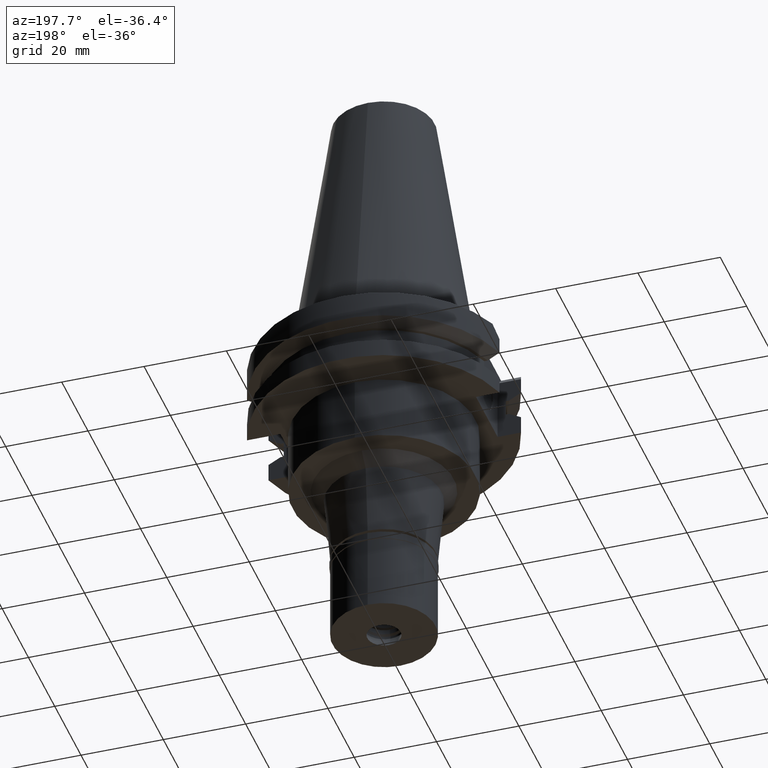
[diagram: clean part render]
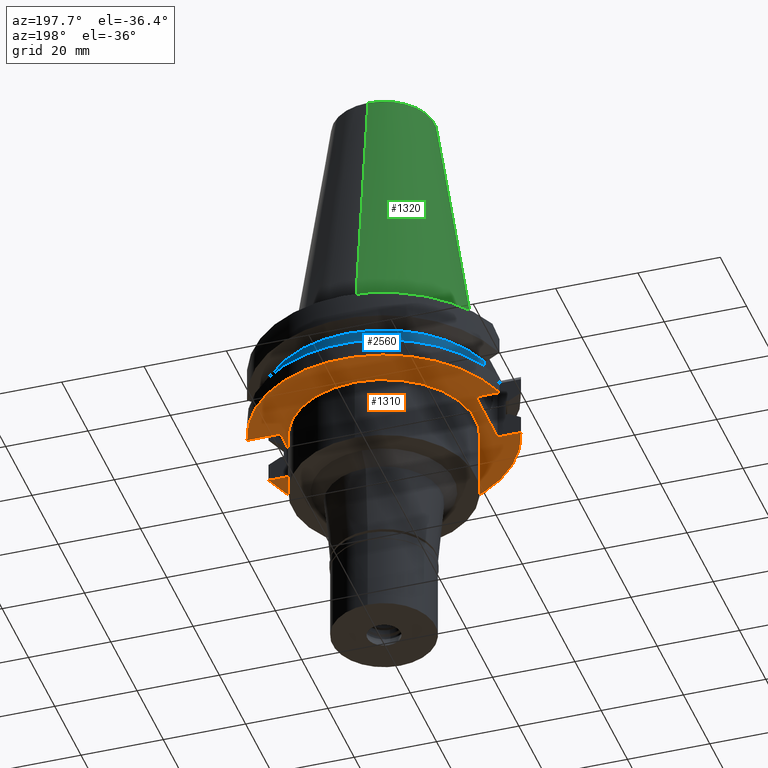
[diagram: same view with three faces highlighted in distinct colors, each labeled with its STEP entity id]
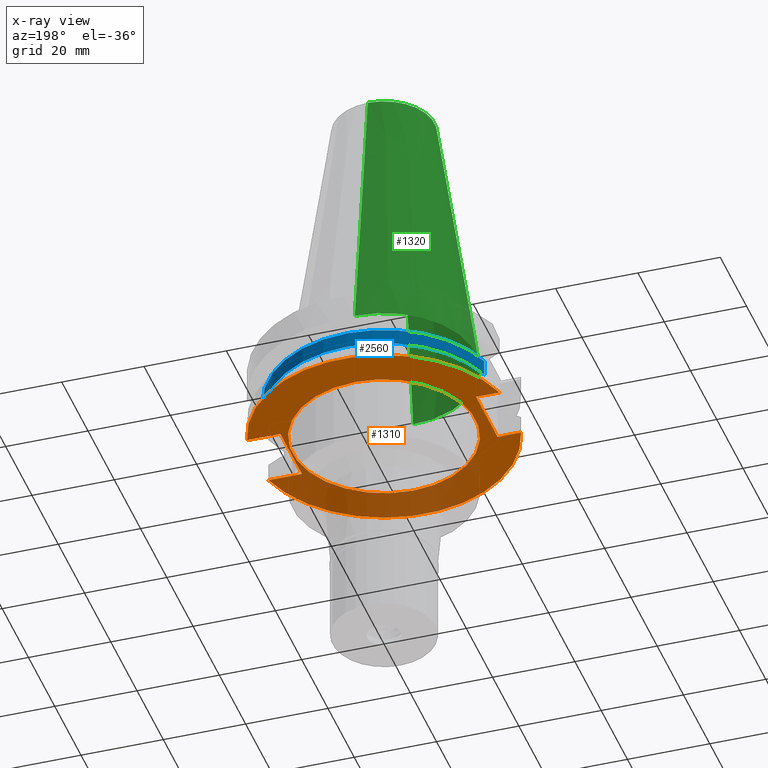
[diagram: x-ray of the same camera — body ghosted, the three highlighted faces saturated]
A machine part, auxiliary view with three faces highlighted in distinct colors.
The next image is the same camera in x-ray (body ghosted, the three faces saturated) — at least one of them is partly hidden behind the body in this view.
Their STEP definitions:

[orange] entity #1310 — the highlighted planar face has unit normal (0, 0, -1).
#21 = CARTESIAN_POINT ( 'NONE',  ( 0.0000000000000000000, 2.145121949555999817E-14, -19.05000000000000071 ) ) ;
#49 = DIRECTION ( 'NONE',  ( 0.0000000000000000000, 0.0000000000000000000, -1.000000000000000000 ) ) ;
#139 = DIRECTION ( 'NONE',  ( 0.0000000000000000000, 1.000000000000000000, 0.0000000000000000000 ) ) ;
#204 = VERTEX_POINT ( 'NONE', #1581 ) ;
#240 = LINE ( 'NONE', #777, #2527 ) ;
#245 = EDGE_CURVE ( 'NONE', #2936, #1126, #911, .T. ) ;
#273 = CARTESIAN_POINT ( 'NONE',  ( -24.98000000000000043, 8.189999999999999503, -19.05000000000000071 ) ) ;
#290 = LINE ( 'NONE', #1854, #802 ) ;
#314 = AXIS2_PLACEMENT_3D ( 'NONE', #1952, #2725, #1414 ) ;
#497 = EDGE_CURVE ( 'NONE', #2647, #3031, #2923, .T. ) ;
#502 = ORIENTED_EDGE ( 'NONE', *, *, #2069, .F. ) ;
#587 = EDGE_CURVE ( 'NONE', #3329, #204, #290, .T. ) ;
#624 = ORIENTED_EDGE ( 'NONE', *, *, #587, .T. ) ;
#628 = ORIENTED_EDGE ( 'NONE', *, *, #1070, .F. ) ;
#644 = DIRECTION ( 'NONE',  ( 0.0000000000000000000, -1.000000000000000000, 0.0000000000000000000 ) ) ;
#741 = CARTESIAN_POINT ( 'NONE',  ( -30.67550162588999640, -8.189999999999999503, -19.05000000000000071 ) ) ;
#746 = AXIS2_PLACEMENT_3D ( 'NONE', #2097, #2625, #1792 ) ;
#771 = VERTEX_POINT ( 'NONE', #1117 ) ;
#777 = CARTESIAN_POINT ( 'NONE',  ( -24.98000000000000043, 8.189999999999999503, -19.05000000000000071 ) ) ;
#802 = VECTOR ( 'NONE', #3124, 1000.000000000000000 ) ;
#886 = CARTESIAN_POINT ( 'NONE',  ( 22.57000000000000028, 8.189999999999999503, -19.05000000000000071 ) ) ;
#911 = CIRCLE ( 'NONE', #2974, 22.22500000000000142 ) ;
#922 = VECTOR ( 'NONE', #2268, 1000.000000000000000 ) ;
#949 = EDGE_CURVE ( 'NONE', #2722, #3031, #2066, .T. ) ;
#970 = CIRCLE ( 'NONE', #746, 22.22500000000000142 ) ;
#1004 = CIRCLE ( 'NONE', #1711, 31.75000000000000000 ) ;
#1025 = ORIENTED_EDGE ( 'NONE', *, *, #245, .F. ) ;
#1070 = EDGE_CURVE ( 'NONE', #1126, #2936, #970, .T. ) ;
#1112 = CARTESIAN_POINT ( 'NONE',  ( 22.57000000000000028, 8.189999999999999503, -19.05000000000000071 ) ) ;
#1117 = CARTESIAN_POINT ( 'NONE',  ( -24.98000000000000043, -8.189999999999999503, -19.05000000000000071 ) ) ;
#1126 = VERTEX_POINT ( 'NONE', #1278 ) ;
#1136 = DIRECTION ( 'NONE',  ( 0.0000000000000000000, -1.000000000000000000, 0.0000000000000000000 ) ) ;
#1175 = ORIENTED_EDGE ( 'NONE', *, *, #3120, .F. ) ;
#1197 = DIRECTION ( 'NONE',  ( 0.0000000000000000000, 0.0000000000000000000, 1.000000000000000000 ) ) ;
#1210 = CARTESIAN_POINT ( 'NONE',  ( 30.67550162588999640, -8.189999999999999503, -19.05000000000000071 ) ) ;
#1217 = VERTEX_POINT ( 'NONE', #1112 ) ;
#1265 = DIRECTION ( 'NONE',  ( 0.0000000000000000000, 0.0000000000000000000, 1.000000000000000000 ) ) ;
#1278 = CARTESIAN_POINT ( 'NONE',  ( 0.0000000000000000000, -22.22500000000000142, -19.05000000000000071 ) ) ;
#1310 = ADVANCED_FACE ( 'NONE', ( #3239, #2983 ), #1681, .T. ) ;
#1369 = CARTESIAN_POINT ( 'NONE',  ( 0.0000000000000000000, 22.22500000000000142, -19.05000000000000071 ) ) ;
#1414 = DIRECTION ( 'NONE',  ( 0.0000000000000000000, -1.000000000000000000, 0.0000000000000000000 ) ) ;
#1436 = VECTOR ( 'NONE', #644, 1000.000000000000000 ) ;
#1474 = LINE ( 'NONE', #3323, #922 ) ;
#1506 = CARTESIAN_POINT ( 'NONE',  ( 22.57000000000000028, -8.189999999999999503, -19.05000000000000071 ) ) ;
#1532 = DIRECTION ( 'NONE',  ( 1.000000000000000000, 0.0000000000000000000, 0.0000000000000000000 ) ) ;
#1581 = CARTESIAN_POINT ( 'NONE',  ( -30.67550162588999640, 8.189999999999999503, -19.05000000000000071 ) ) ;
#1681 = PLANE ( 'NONE',  #314 ) ;
#1711 = AXIS2_PLACEMENT_3D ( 'NONE', #2767, #1197, #139 ) ;
#1761 = VECTOR ( 'NONE', #2007, 1000.000000000000000 ) ;
#1792 = DIRECTION ( 'NONE',  ( 0.0000000000000000000, -1.000000000000000000, 0.0000000000000000000 ) ) ;
#1854 = CARTESIAN_POINT ( 'NONE',  ( -24.98000000000000043, 8.189999999999999503, -19.05000000000000071 ) ) ;
#1870 = ORIENTED_EDGE ( 'NONE', *, *, #2459, .T. ) ;
#1875 = CARTESIAN_POINT ( 'NONE',  ( 0.0000000000000000000, 2.145121949555999817E-14, -19.05000000000000071 ) ) ;
#1952 = CARTESIAN_POINT ( 'NONE',  ( 0.0000000000000000000, 0.0000000000000000000, -19.05000000000000071 ) ) ;
#1967 = VERTEX_POINT ( 'NONE', #2963 ) ;
#2007 = DIRECTION ( 'NONE',  ( 1.000000000000000000, 0.0000000000000000000, 0.0000000000000000000 ) ) ;
#2056 = VECTOR ( 'NONE', #1532, 1000.000000000000000 ) ;
#2066 = LINE ( 'NONE', #2611, #2056 ) ;
#2069 = EDGE_CURVE ( 'NONE', #771, #2647, #1474, .T. ) ;
#2097 = CARTESIAN_POINT ( 'NONE',  ( 0.0000000000000000000, 2.145121949555999817E-14, -19.05000000000000071 ) ) ;
#2239 = ORIENTED_EDGE ( 'NONE', *, *, #949, .T. ) ;
#2268 = DIRECTION ( 'NONE',  ( -1.000000000000000000, 0.0000000000000000000, 0.0000000000000000000 ) ) ;
#2325 = AXIS2_PLACEMENT_3D ( 'NONE', #21, #1265, #3107 ) ;
#2366 = DIRECTION ( 'NONE',  ( 0.0000000000000000000, 1.000000000000000000, 0.0000000000000000000 ) ) ;
#2432 = LINE ( 'NONE', #886, #1436 ) ;
#2459 = EDGE_CURVE ( 'NONE', #1217, #2722, #2432, .T. ) ;
#2527 = VECTOR ( 'NONE', #1136, 1000.000000000000000 ) ;
#2611 = CARTESIAN_POINT ( 'NONE',  ( 22.57000000000000028, -8.189999999999999503, -19.05000000000000071 ) ) ;
#2625 = DIRECTION ( 'NONE',  ( 0.0000000000000000000, 0.0000000000000000000, -1.000000000000000000 ) ) ;
#2628 = ORIENTED_EDGE ( 'NONE', *, *, #3064, .F. ) ;
#2647 = VERTEX_POINT ( 'NONE', #741 ) ;
#2722 = VERTEX_POINT ( 'NONE', #1506 ) ;
#2725 = DIRECTION ( 'NONE',  ( 0.0000000000000000000, 0.0000000000000000000, -1.000000000000000000 ) ) ;
#2767 = CARTESIAN_POINT ( 'NONE',  ( 0.0000000000000000000, 2.145121949555999817E-14, -19.05000000000000071 ) ) ;
#2880 = EDGE_CURVE ( 'NONE', #3329, #771, #240, .T. ) ;
#2902 = ORIENTED_EDGE ( 'NONE', *, *, #497, .F. ) ;
#2923 = CIRCLE ( 'NONE', #2325, 31.75000000000000000 ) ;
#2936 = VERTEX_POINT ( 'NONE', #1369 ) ;
#2963 = CARTESIAN_POINT ( 'NONE',  ( 30.67550162588999640, 8.189999999999999503, -19.05000000000000071 ) ) ;
#2974 = AXIS2_PLACEMENT_3D ( 'NONE', #1875, #49, #2366 ) ;
#2983 = FACE_BOUND ( 'NONE', #3049, .T. ) ;
#3031 = VERTEX_POINT ( 'NONE', #1210 ) ;
#3049 = EDGE_LOOP ( 'NONE', ( #1025, #628 ) ) ;
#3064 = EDGE_CURVE ( 'NONE', #1217, #1967, #3264, .T. ) ;
#3107 = DIRECTION ( 'NONE',  ( 0.0000000000000000000, -1.000000000000000000, 0.0000000000000000000 ) ) ;
#3120 = EDGE_CURVE ( 'NONE', #1967, #204, #1004, .T. ) ;
#3124 = DIRECTION ( 'NONE',  ( -1.000000000000000000, 0.0000000000000000000, 0.0000000000000000000 ) ) ;
#3239 = FACE_OUTER_BOUND ( 'NONE', #3331, .T. ) ;
#3245 = CARTESIAN_POINT ( 'NONE',  ( 22.57000000000000028, 8.189999999999999503, -19.05000000000000071 ) ) ;
#3264 = LINE ( 'NONE', #3245, #1761 ) ;
#3323 = CARTESIAN_POINT ( 'NONE',  ( -24.98000000000000043, -8.189999999999999503, -19.05000000000000071 ) ) ;
#3329 = VERTEX_POINT ( 'NONE', #273 ) ;
#3331 = EDGE_LOOP ( 'NONE', ( #2239, #2902, #502, #3370, #624, #1175, #2628, #1870 ) ) ;
#3370 = ORIENTED_EDGE ( 'NONE', *, *, #2880, .F. ) ;

[blue] entity #2560 — the highlighted cylindrical surface (partial cylindrical patch) has radius 28.18 mm, axis along (0, 0, -1).
#118 = ORIENTED_EDGE ( 'NONE', *, *, #499, .T. ) ;
#352 = CARTESIAN_POINT ( 'NONE',  ( 0.0000000000000000000, 2.145121949555999817E-14, 75.16249999999999432 ) ) ;
#359 = DIRECTION ( 'NONE',  ( 0.0000000000000000000, 0.0000000000000000000, 1.000000000000000000 ) ) ;
#369 = AXIS2_PLACEMENT_3D ( 'NONE', #1338, #1034, #2850 ) ;
#455 = AXIS2_PLACEMENT_3D ( 'NONE', #352, #1661, #2705 ) ;
#469 = VERTEX_POINT ( 'NONE', #709 ) ;
#499 = EDGE_CURVE ( 'NONE', #469, #1271, #640, .T. ) ;
#640 = CIRCLE ( 'NONE', #369, 28.17999999999999616 ) ;
#709 = CARTESIAN_POINT ( 'NONE',  ( -26.96361066326000255, 8.189999999999999503, -9.209999999999999076 ) ) ;
#753 = DIRECTION ( 'NONE',  ( 0.0000000000000000000, 1.000000000000000000, 0.0000000000000000000 ) ) ;
#962 = DIRECTION ( 'NONE',  ( 0.0000000000000000000, 0.0000000000000000000, -1.000000000000000000 ) ) ;
#1034 = DIRECTION ( 'NONE',  ( 0.0000000000000000000, 0.0000000000000000000, -1.000000000000000000 ) ) ;
#1148 = EDGE_CURVE ( 'NONE', #3291, #1271, #1378, .T. ) ;
#1271 = VERTEX_POINT ( 'NONE', #1616 ) ;
#1338 = CARTESIAN_POINT ( 'NONE',  ( 0.0000000000000000000, 2.145121949555999817E-14, -9.209999999999999076 ) ) ;
#1378 = LINE ( 'NONE', #3157, #2011 ) ;
#1458 = CARTESIAN_POINT ( 'NONE',  ( -26.96361066326000255, 8.189999999999999503, -13.05000000000000071 ) ) ;
#1566 = EDGE_LOOP ( 'NONE', ( #2657, #2956, #2519, #118 ) ) ;
#1616 = CARTESIAN_POINT ( 'NONE',  ( 26.96361066326000255, 8.189999999999999503, -9.209999999999999076 ) ) ;
#1643 = FACE_OUTER_BOUND ( 'NONE', #1566, .T. ) ;
#1661 = DIRECTION ( 'NONE',  ( 0.0000000000000000000, 0.0000000000000000000, -1.000000000000000000 ) ) ;
#1713 = CIRCLE ( 'NONE', #1829, 28.17999999999999972 ) ;
#1726 = LINE ( 'NONE', #3038, #3237 ) ;
#1757 = CARTESIAN_POINT ( 'NONE',  ( 0.0000000000000000000, 2.145121949555999817E-14, -13.05000000000000071 ) ) ;
#1794 = CARTESIAN_POINT ( 'NONE',  ( 26.96361066326000255, 8.189999999999999503, -13.05000000000000071 ) ) ;
#1810 = DIRECTION ( 'NONE',  ( 0.0000000000000000000, 0.0000000000000000000, 1.000000000000000000 ) ) ;
#1829 = AXIS2_PLACEMENT_3D ( 'NONE', #1757, #1810, #753 ) ;
#2011 = VECTOR ( 'NONE', #359, 1000.000000000000000 ) ;
#2519 = ORIENTED_EDGE ( 'NONE', *, *, #3042, .F. ) ;
#2560 = ADVANCED_FACE ( 'NONE', ( #1643 ), #2687, .T. ) ;
#2657 = ORIENTED_EDGE ( 'NONE', *, *, #1148, .F. ) ;
#2668 = VERTEX_POINT ( 'NONE', #1458 ) ;
#2687 = CYLINDRICAL_SURFACE ( 'NONE', #455, 28.17999999999999972 ) ;
#2705 = DIRECTION ( 'NONE',  ( 0.0000000000000000000, -1.000000000000000000, 0.0000000000000000000 ) ) ;
#2850 = DIRECTION ( 'NONE',  ( -0.9568350128907829877, 0.2906316536550950236, 0.0000000000000000000 ) ) ;
#2956 = ORIENTED_EDGE ( 'NONE', *, *, #3283, .T. ) ;
#3038 = CARTESIAN_POINT ( 'NONE',  ( -26.96361066326000255, 8.189999999999999503, -9.209999999999999076 ) ) ;
#3042 = EDGE_CURVE ( 'NONE', #469, #2668, #1726, .T. ) ;
#3157 = CARTESIAN_POINT ( 'NONE',  ( 26.96361066326000255, 8.189999999999999503, -13.05000000000000071 ) ) ;
#3237 = VECTOR ( 'NONE', #962, 1000.000000000000000 ) ;
#3283 = EDGE_CURVE ( 'NONE', #3291, #2668, #1713, .T. ) ;
#3291 = VERTEX_POINT ( 'NONE', #1794 ) ;

[green] entity #1320 — the highlighted conical surface has half-angle 8.297 deg.
#8 = ORIENTED_EDGE ( 'NONE', *, *, #268, .T. ) ;
#110 = VERTEX_POINT ( 'NONE', #2532 ) ;
#120 = FACE_OUTER_BOUND ( 'NONE', #781, .T. ) ;
#220 = LINE ( 'NONE', #3053, #3186 ) ;
#268 = EDGE_CURVE ( 'NONE', #1495, #110, #1722, .T. ) ;
#339 = CARTESIAN_POINT ( 'NONE',  ( 0.0000000000000000000, -22.22500000000000142, -1.989519660127999812E-13 ) ) ;
#356 = ORIENTED_EDGE ( 'NONE', *, *, #897, .F. ) ;
#532 = CONICAL_SURFACE ( 'NONE', #2978, 17.24843444035000317, 0.1448125860318199565 ) ;
#637 = CARTESIAN_POINT ( 'NONE',  ( 0.0000000000000000000, -12.27186888070000137, 68.25000000000000000 ) ) ;
#781 = EDGE_LOOP ( 'NONE', ( #356, #990, #8, #2407 ) ) ;
#897 = EDGE_CURVE ( 'NONE', #1852, #2791, #2434, .T. ) ;
#908 = DIRECTION ( 'NONE',  ( 0.0000000000000000000, 0.0000000000000000000, -1.000000000000000000 ) ) ;
#935 = CARTESIAN_POINT ( 'NONE',  ( 0.0000000000000000000, -12.27186888070000137, 68.25000000000000000 ) ) ;
#990 = ORIENTED_EDGE ( 'NONE', *, *, #2734, .F. ) ;
#1074 = DIRECTION ( 'NONE',  ( 0.0000000000000000000, 0.0000000000000000000, -1.000000000000000000 ) ) ;
#1288 = CARTESIAN_POINT ( 'NONE',  ( 0.0000000000000000000, 22.22500000000000142, -1.989519660127999812E-13 ) ) ;
#1320 = ADVANCED_FACE ( 'NONE', ( #120 ), #532, .T. ) ;
#1495 = VERTEX_POINT ( 'NONE', #637 ) ;
#1541 = CARTESIAN_POINT ( 'NONE',  ( 0.0000000000000000000, 1.642557519355999895E-14, 68.25000000000000000 ) ) ;
#1705 = CARTESIAN_POINT ( 'NONE',  ( 0.0000000000000000000, 1.642557519355999895E-14, -3.126388037344000570E-13 ) ) ;
#1722 = CIRCLE ( 'NONE', #3248, 12.27186888070000137 ) ;
#1754 = DIRECTION ( 'NONE',  ( 0.0000000000000000000, -1.000000000000000000, 0.0000000000000000000 ) ) ;
#1852 = VERTEX_POINT ( 'NONE', #339 ) ;
#2049 = DIRECTION ( 'NONE',  ( 0.0000000000000000000, 0.1443069799456937474, -0.9895329683941577192 ) ) ;
#2112 = DIRECTION ( 'NONE',  ( 0.0000000000000000000, -1.000000000000000000, 0.0000000000000000000 ) ) ;
#2190 = DIRECTION ( 'NONE',  ( 0.0000000000000000000, -1.000000000000000000, 0.0000000000000000000 ) ) ;
#2200 = CARTESIAN_POINT ( 'NONE',  ( 0.0000000000000000000, 1.642557519355999895E-14, 34.12500000000000000 ) ) ;
#2407 = ORIENTED_EDGE ( 'NONE', *, *, #3279, .T. ) ;
#2434 = CIRCLE ( 'NONE', #2652, 22.22500000000000142 ) ;
#2532 = CARTESIAN_POINT ( 'NONE',  ( 0.0000000000000000000, 12.27186888070000137, 68.25000000000000000 ) ) ;
#2652 = AXIS2_PLACEMENT_3D ( 'NONE', #1705, #3293, #1754 ) ;
#2734 = EDGE_CURVE ( 'NONE', #1495, #1852, #3070, .T. ) ;
#2791 = VERTEX_POINT ( 'NONE', #1288 ) ;
#2820 = DIRECTION ( 'NONE',  ( 0.0000000000000000000, -0.1443069799456937474, -0.9895329683941577192 ) ) ;
#2978 = AXIS2_PLACEMENT_3D ( 'NONE', #2200, #908, #2190 ) ;
#3019 = VECTOR ( 'NONE', #2820, 1000.000000000000114 ) ;
#3053 = CARTESIAN_POINT ( 'NONE',  ( 0.0000000000000000000, 12.27186888070000137, 68.25000000000000000 ) ) ;
#3070 = LINE ( 'NONE', #935, #3019 ) ;
#3186 = VECTOR ( 'NONE', #2049, 1000.000000000000114 ) ;
#3248 = AXIS2_PLACEMENT_3D ( 'NONE', #1541, #1074, #2112 ) ;
#3279 = EDGE_CURVE ( 'NONE', #110, #2791, #220, .T. ) ;
#3293 = DIRECTION ( 'NONE',  ( 0.0000000000000000000, 0.0000000000000000000, -1.000000000000000000 ) ) ;